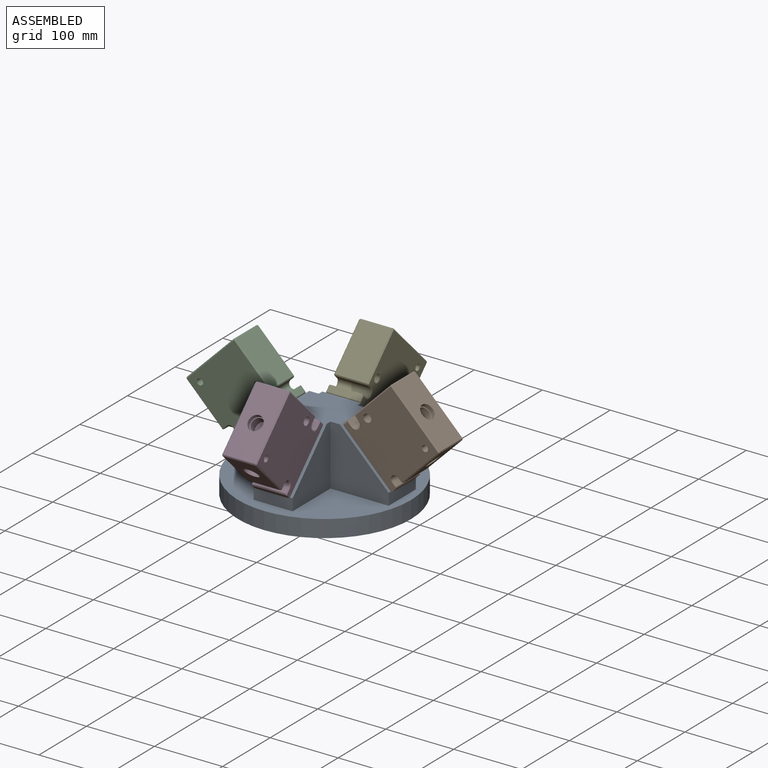
[diagram: assembled view]
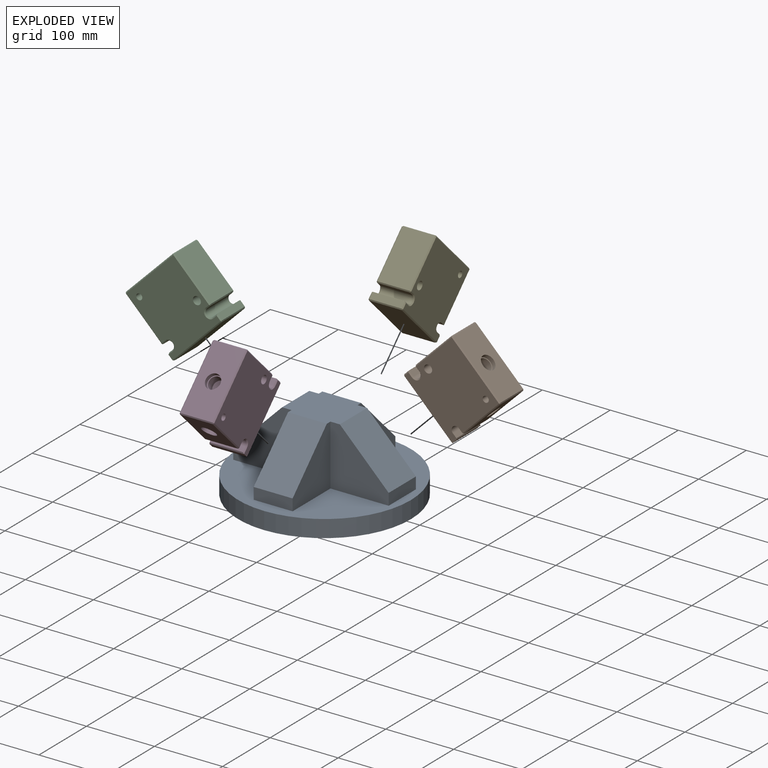
[diagram: exploded view]
GUIDED TOUR — MATED ASSEMBLY (Onshape document 776c51f406f03fa91e3d3eb6, AutoMate assembly 776c51f406f03fa91e3d3eb6_76f6691580d70d45bb50dfe1_dc037e8c6d7397916c1f4bed_default)

This assembly has 5 components, labeled P0..P4 below (a component is one placed occurrence of a part; the same part can appear more than once), held together by 4 mates. A mate is a constraint between two components; its type names the relative motion it leaves free:
  FASTENED — locks the two components together rigidly (no relative motion).
Axis/direction vectors are unit vectors and 'through' points are millimeter coordinates, both in the assembly's world frame.

MATES
  1. FASTENED "Fastened 3": P1 <-> P0, direction (-0.707, 0.000, -0.707) through (114.30, -23.88, -71.84) mm
  2. FASTENED "Fastened 5": P2 <-> P0, direction (0.707, 0.000, -0.707) through (-114.30, 23.88, -71.84) mm
  3. FASTENED "Fastened 4": P4 <-> P0, direction (0.000, -0.707, -0.707) through (23.88, 107.95, -71.84) mm
  4. FASTENED "Fastened 2": P3 <-> P0, direction (0.000, 0.707, -0.707) through (-23.88, -107.95, -71.84) mm

ASSEMBLY ORDER
  1. P4 — the base component [order verified]
  2. P0 [order verified]
  3. P3 [order verified]
  4. P2 [order verified]
  5. P1 [order verified]
Order-tag legend:
  [order verified] — this step's position reverses a verified removal order: the component was checked to insert without passing through the ones already placed.

Of the 5 components, 1 carries the full construction recipe — the FeatureScript program that regenerates the part's solid from scratch; the rest are supplied as boundary geometry only.
Each toured component is shown spotlighted twice — in the assembled view, then in the exploded view, where a leader line traces a displaced component back to its assembled socket (saturated green if recipe-attached, orange if geometry-only; every other component desaturated gray) — followed by its recipe or geometry summary and the mates that hold it.
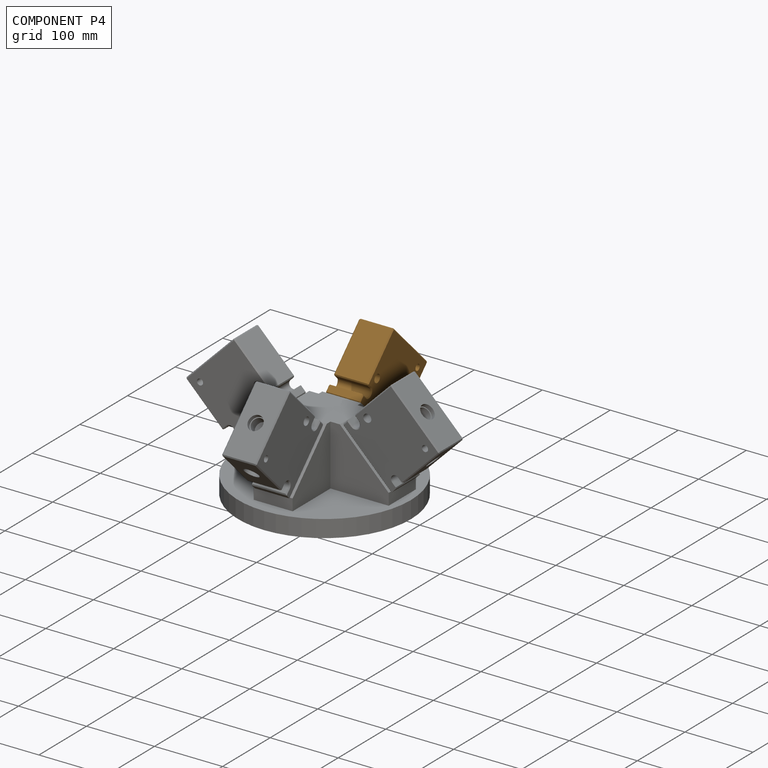
[diagram: component P4 — assembled]
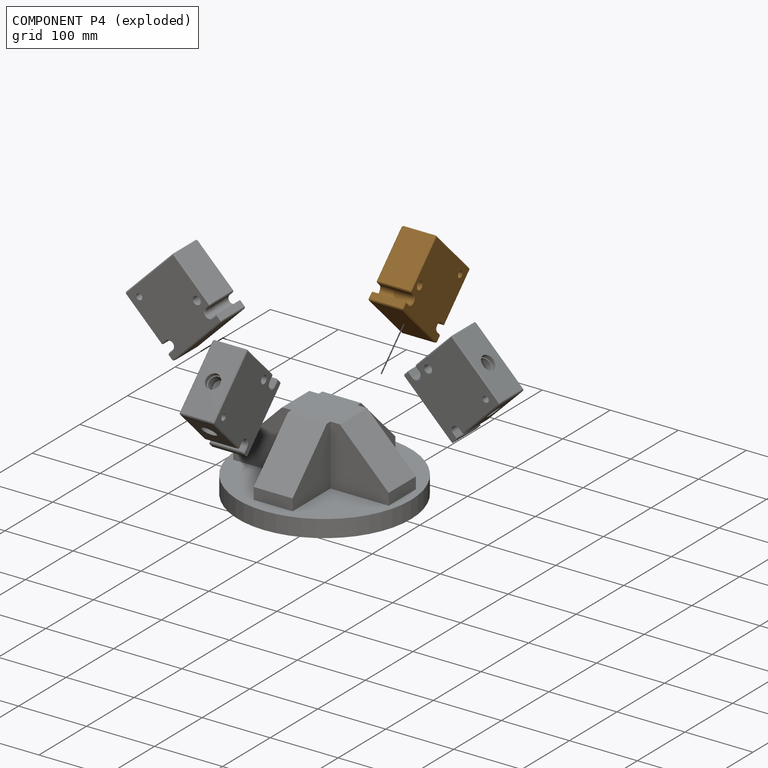
[diagram: component P4 — exploded]
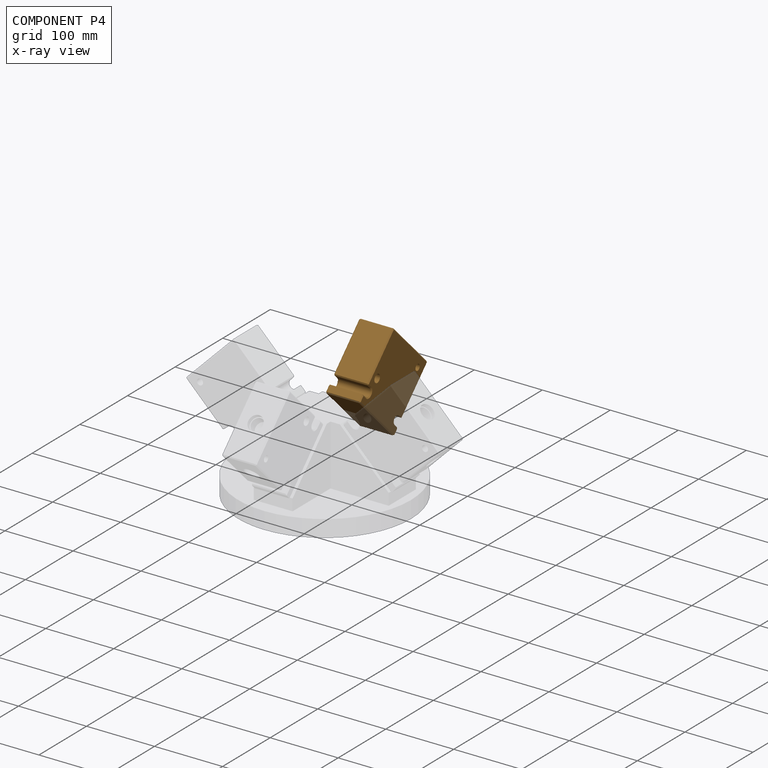
[diagram: component P4 — x-ray view]
COMPONENT P4 — geometry summary (no construction recipe available for this part):
  bounding box: 101.6 x 101.6 x 50.8 mm
  B-rep topology: 1 solid, 58 faces, 250 edges
  volume: 483238 mm^3 (92% of its bounding box)
  symmetry: mirror-symmetric across its x mid-plane
Held by: FASTENED mate "Fastened 4" to P0.
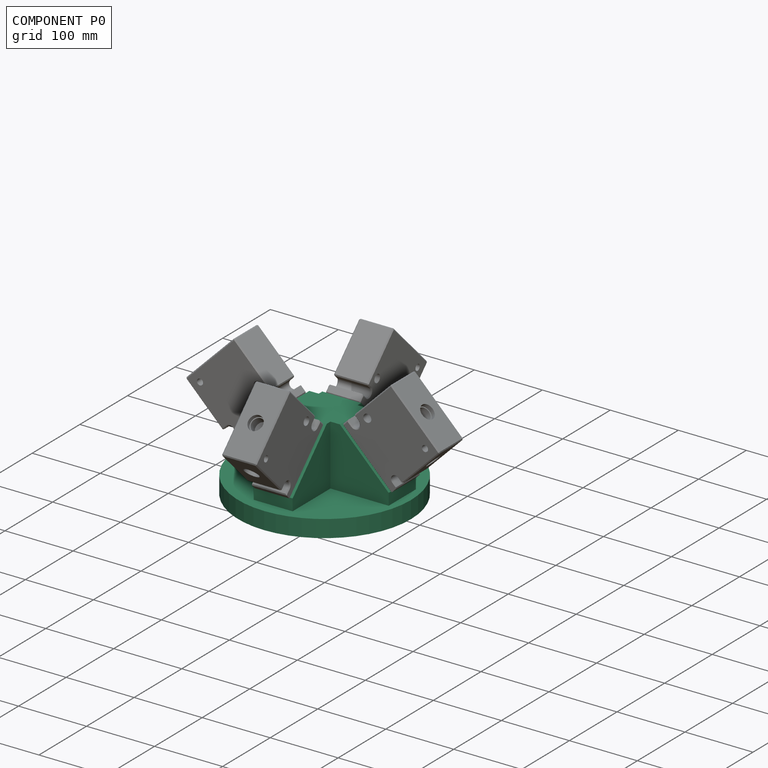
[diagram: component P0 — assembled]
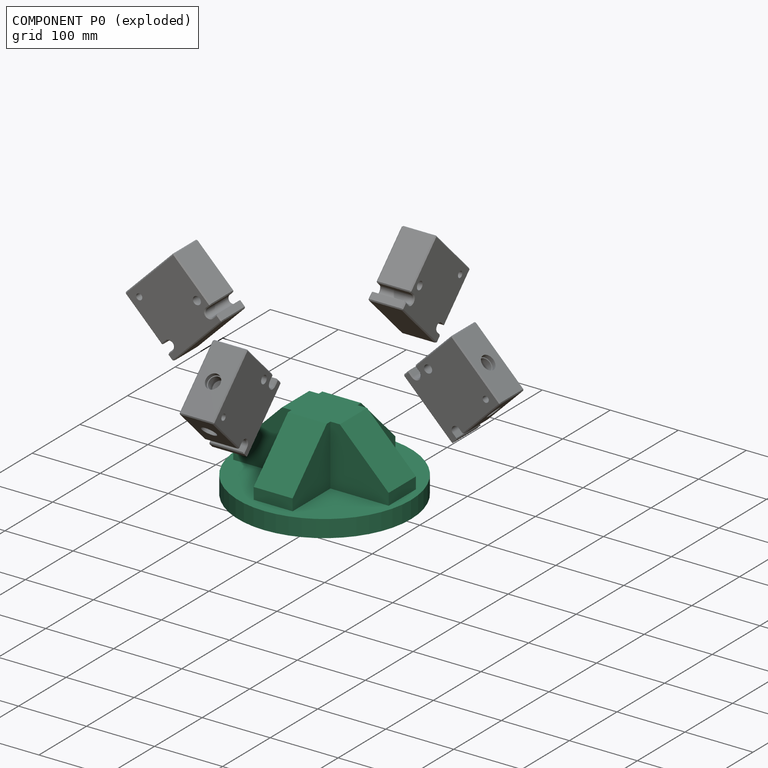
[diagram: component P0 — exploded]
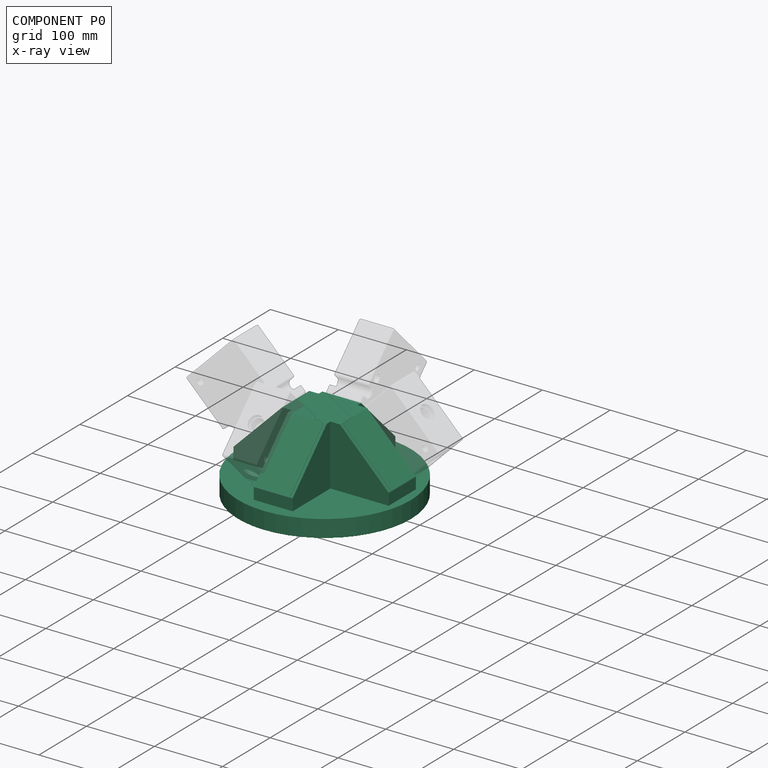
[diagram: component P0 — x-ray view]
COMPONENT P0 — recipe-attached (CADFS 00814078, mesh-verified: the recipe's output STEP matches this component's geometry to below the mesh-comparison resolution (tessellation chordal tolerance ~0.565 mm)).
Held by: FASTENED mate "Fastened 3" to P1; FASTENED mate "Fastened 5" to P2; FASTENED mate "Fastened 4" to P4; FASTENED mate "Fastened 2" to P3.
Construction recipe (FeatureScript — the CAD program that rebuilds this solid; sketch coordinates are in the units given by the * unit suffixes, e.g. mm):

FeatureScript 1511;
import(path : "onshape/std/geometry.fs", version : "1511.0");
import(path : "onshape/std/common.fs", version : "1511.0");
const mm = millimeter;
const VERTEX = EntityType.VERTEX;
const EDGE = EntityType.EDGE;
const FACE = EntityType.FACE;
const BODY = EntityType.BODY;
function v(x, y){return vector(x, y);}
function OD(order){return orderDisambiguation(order);}
function OSD(set){return originalSetDisambiguation(set);}
function TD(topology){return topologyDisambiguation(topology);}
function TDD(query){return trueDependencyDisambiguation(query);}
function sQuery(a, b, c) {return sketchEntityQuery(a, b, c);}

annotation { "Feature Type Name" : "Feature", "Feature Type Description" : "" }
export const myFeature = defineFeature(function(context is Context, id is Id, definition is map)
    precondition{}
    {
        {
            var Q0;
            Q0=qCreatedBy(makeId("Top.planeOp"),FACE);
            var sketch = newSketch(context, id + "F0", { "sketchPlane" : qUnion([Q0])});
            skCircle(sketch, "E0", {"center": v(0, 0) * mm, "radius": 127 * mm});
            skSolve(sketch);
        }
        {
            var Q0;
            Q0=makeQuery(id+"F0.imprint","IMPRINT",FACE,{"disambiguationData":[TD([[makeQuery(id+"F0.imprint","IMPRINT",EDGE,{"derivedFrom":sQuery(id+"F0.wireOp",EDGE,"E0")}),1.0]])]});
            extrude(context, id + "F1", {"entities" : qUnion([Q0]), "depth" : 25.4 * mm, "offsetDistance" : 25.4 * mm});
        }
        {
            var Q0;
            Q0=qCreatedBy(makeId("Right.planeOp"),FACE);
            var sketch = newSketch(context, id + "F2", { "sketchPlane" : qUnion([Q0])});
            skLineSegment(sketch, "E1", {"start": v(-107.95, 25.4) * mm, "end": v(-107.95, 42.46) * mm});
            skLineSegment(sketch, "E2", {"start": v(-107.95, 42.46) * mm, "end": v(-36.1, 114.3) * mm});
            skLineSegment(sketch, "E3", {"start": v(-36.1, 114.3) * mm, "end": v(0, 114.3) * mm});
            skLineSegment(sketch, "E4", {"start": v(0, 114.3) * mm, "end": v(0, 25.4) * mm});
            skLineSegment(sketch, "E5", {"start": v(0, 25.4) * mm, "end": v(-107.95, 25.4) * mm});
            skLineSegment(sketch, "E6", {"start": v(0, 0) * mm, "end": v(0, 105.86) * mm, "construction": true});
            skPoint(sketch, "E6.endSnap0", {"position": v(0, 69.85) * mm});
            skLineSegment(sketch, "E7.MirrorCS", {"start": v(107.95, 25.4) * mm, "end": v(107.95, 42.46) * mm});
            skLineSegment(sketch, "E8.MirrorCS", {"start": v(36.1, 114.3) * mm, "end": v(0, 114.3) * mm});
            skLineSegment(sketch, "E9.MirrorCS", {"start": v(0, 25.4) * mm, "end": v(107.95, 25.4) * mm});
            skLineSegment(sketch, "E10.MirrorCS", {"start": v(107.95, 42.46) * mm, "end": v(36.1, 114.3) * mm});
            skSolve(sketch);
        }
        {
            var Q0;
            Q0 = qSketchRegion(id + "F2", true);
            extrude(context, id + "F3", {"entities" : qUnion([Q0]), "operationType" : NewBodyOperationType.ADD, "endBound" : BoundingType.SYMMETRIC, "depth" : 57.15 * mm, "offsetDistance" : 25.4 * mm});
        }
        {
            var Q0;
            Q0=qCreatedBy(makeId("Front.planeOp"),FACE);
            var sketch = newSketch(context, id + "F4", { "sketchPlane" : qUnion([Q0])});
            skLineSegment(sketch, "E11", {"start": v(-114.3, 25.4) * mm, "end": v(-114.3, 42.46) * mm});
            skLineSegment(sketch, "E12", {"start": v(-114.3, 42.46) * mm, "end": v(-42.46, 114.3) * mm});
            skLineSegment(sketch, "E13", {"start": v(-42.46, 114.3) * mm, "end": v(0, 114.3) * mm});
            skLineSegment(sketch, "E14", {"start": v(0, 114.3) * mm, "end": v(0, 25.4) * mm});
            skLineSegment(sketch, "E15", {"start": v(0, 25.4) * mm, "end": v(-114.3, 25.4) * mm});
            skLineSegment(sketch, "E16", {"start": v(0, 0) * mm, "end": v(0, 124.28) * mm, "construction": true});
            skLineSegment(sketch, "E17.MirrorCS", {"start": v(114.3, 25.4) * mm, "end": v(114.3, 42.46) * mm});
            skLineSegment(sketch, "E18.MirrorCS", {"start": v(114.3, 42.46) * mm, "end": v(42.46, 114.3) * mm});
            skLineSegment(sketch, "E19.MirrorCS", {"start": v(0, 25.4) * mm, "end": v(114.3, 25.4) * mm});
            skLineSegment(sketch, "E20.MirrorCS", {"start": v(42.46, 114.3) * mm, "end": v(0, 114.3) * mm});
            skSolve(sketch);
        }
        {
            var Q0;
            Q0 = qSketchRegion(id + "F4", true);
            extrude(context, id + "F5", {"entities" : qUnion([Q0]), "operationType" : NewBodyOperationType.ADD, "endBound" : BoundingType.SYMMETRIC, "oppositeDirection" : true, "depth" : 57.15 * mm, "offsetDistance" : 25.4 * mm});
        }
    });
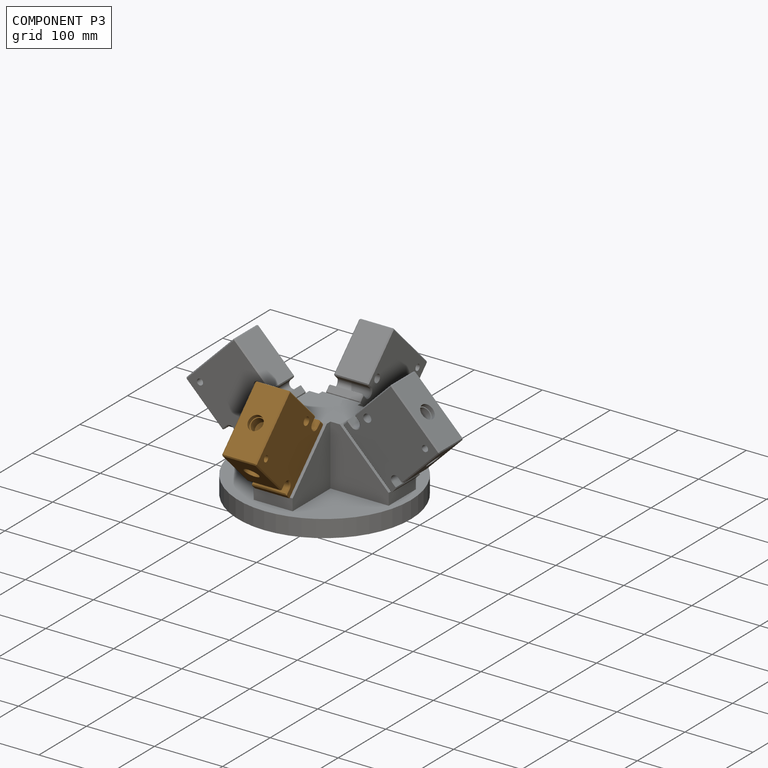
[diagram: component P3 — assembled]
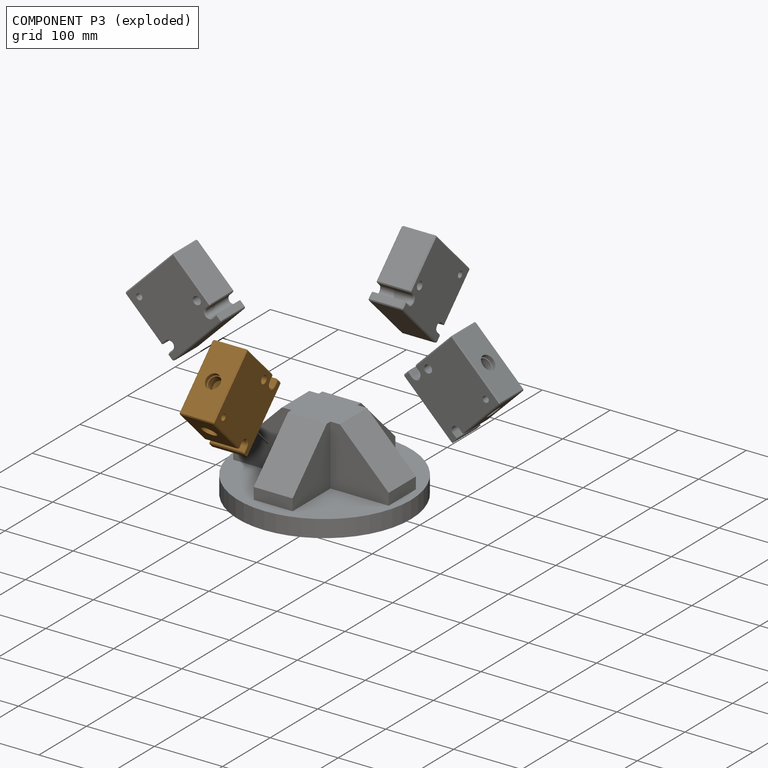
[diagram: component P3 — exploded]
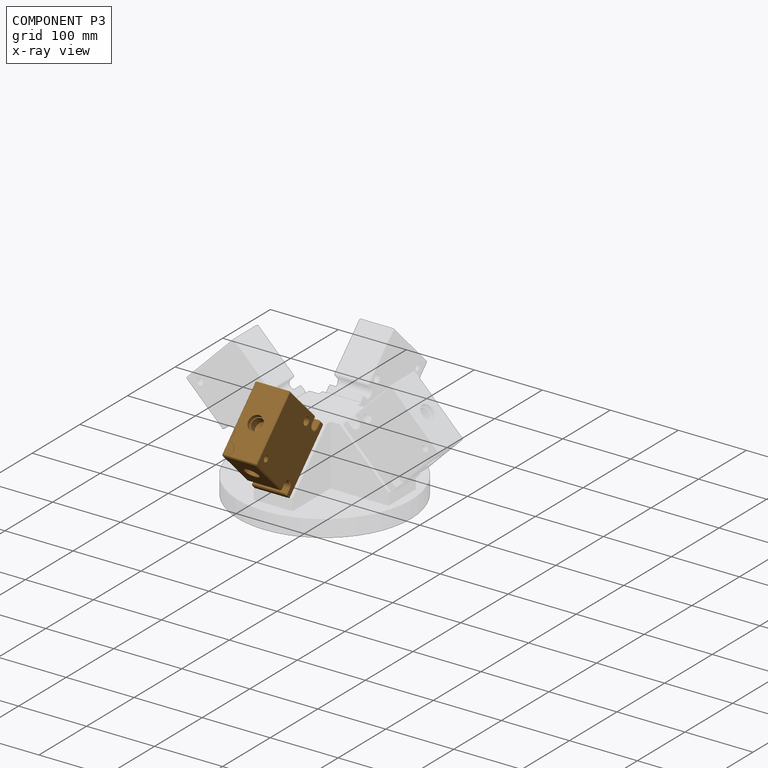
[diagram: component P3 — x-ray view]
COMPONENT P3 — geometry summary (no construction recipe available for this part):
  bounding box: 101.6 x 101.6 x 50.8 mm
  B-rep topology: 1 solid, 58 faces, 250 edges
  volume: 483238 mm^3 (92% of its bounding box)
  symmetry: mirror-symmetric across its x mid-plane
Held by: FASTENED mate "Fastened 2" to P0.
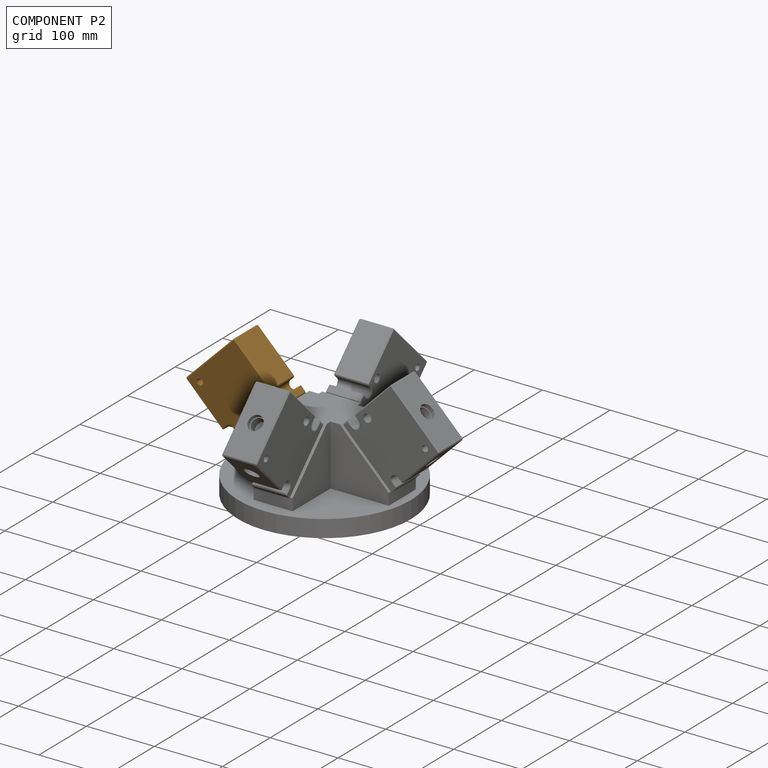
[diagram: component P2 — assembled]
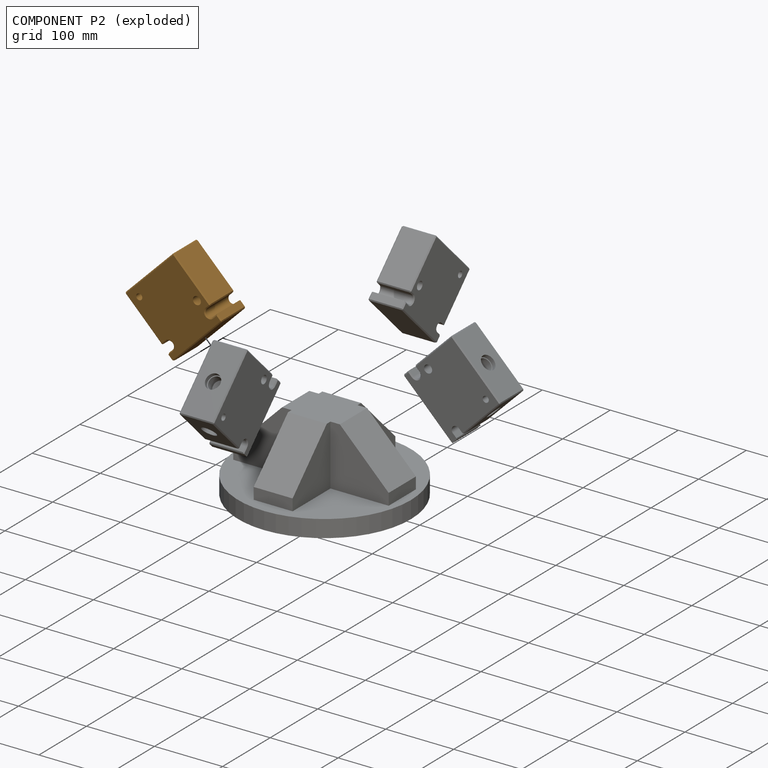
[diagram: component P2 — exploded]
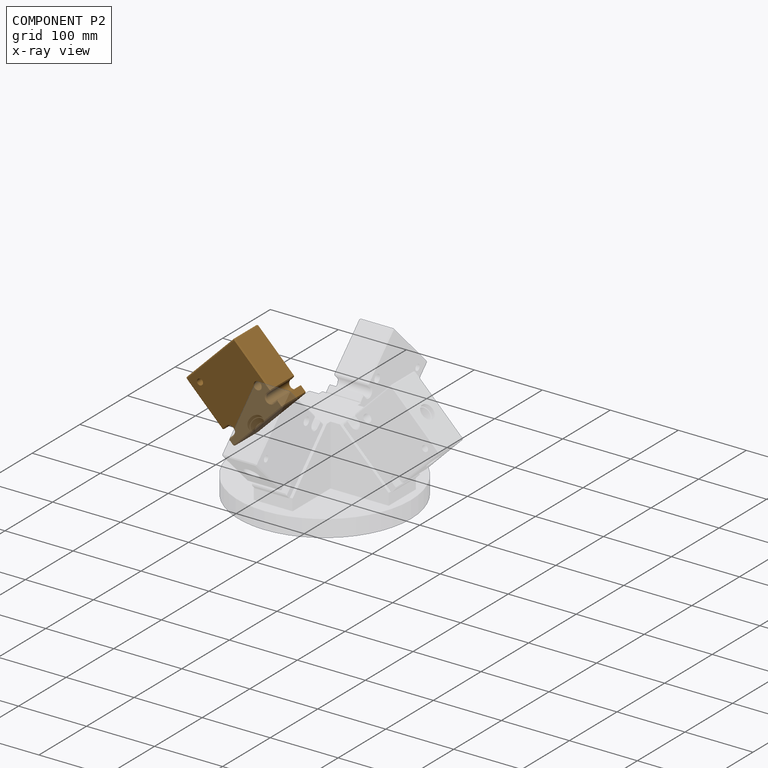
[diagram: component P2 — x-ray view]
COMPONENT P2 — geometry summary (no construction recipe available for this part):
  bounding box: 101.6 x 101.6 x 50.8 mm
  B-rep topology: 1 solid, 58 faces, 250 edges
  volume: 483238 mm^3 (92% of its bounding box)
  symmetry: mirror-symmetric across its x mid-plane
Held by: FASTENED mate "Fastened 5" to P0.
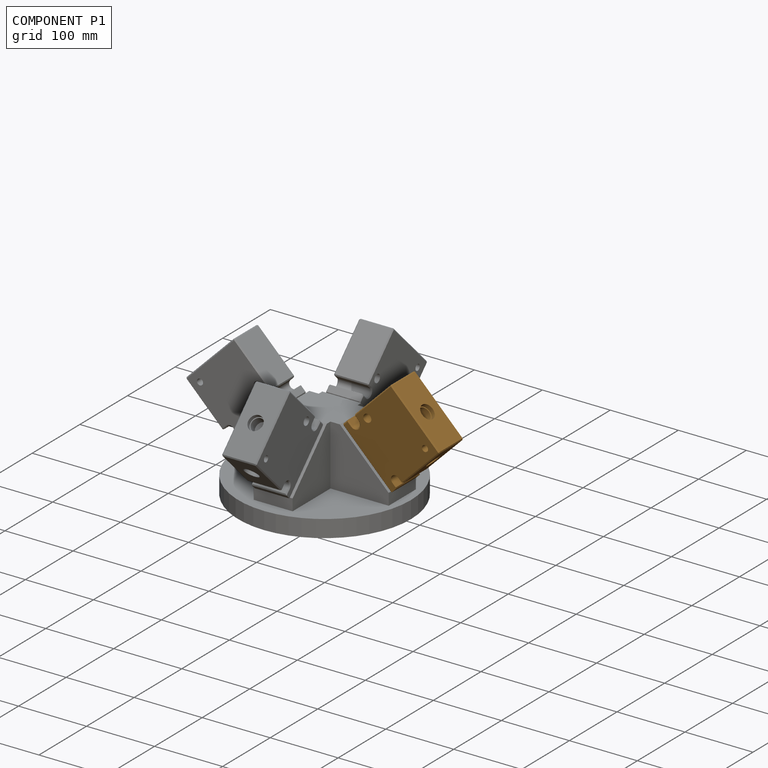
[diagram: component P1 — assembled]
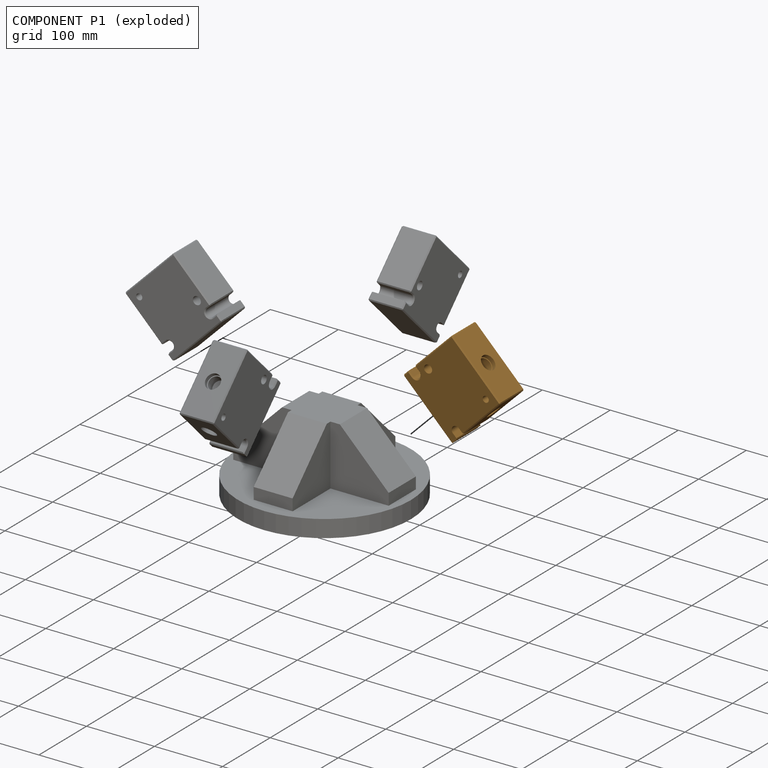
[diagram: component P1 — exploded]
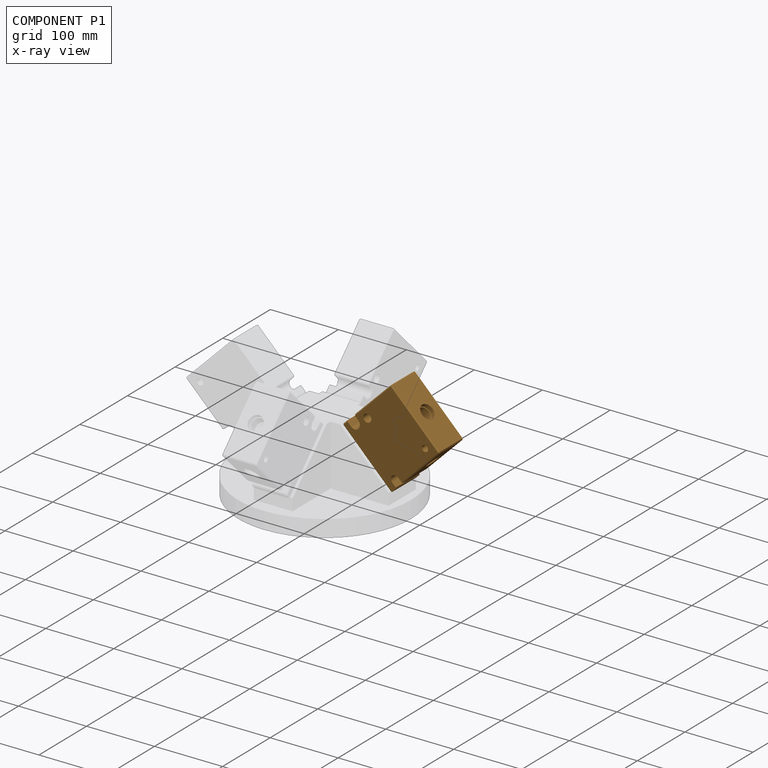
[diagram: component P1 — x-ray view]
COMPONENT P1 — geometry summary (no construction recipe available for this part):
  bounding box: 101.6 x 101.6 x 50.8 mm
  B-rep topology: 1 solid, 58 faces, 250 edges
  volume: 483238 mm^3 (92% of its bounding box)
  symmetry: mirror-symmetric across its x mid-plane
Held by: FASTENED mate "Fastened 3" to P0.
PROVENANCE & LICENSES
Assembly (occurrences, transforms, mates, per-part STEP geometry): AutoMate dataset, Zenodo record 7776208, CC0.
Construction recipes: CADFS (HuggingFace VladPyatov/CADFS, CC-BY-4.0, layered over the ABC dataset), FeatureScript reconstruction programs keyed by ABC model id.
Join: ABC meta listings map ABC model id -> Onshape documentId; within a shared document, parts are matched by geometric signature (bounding-box dims + volume at 0.1% relative tolerance, exact B-rep face/solid counts).
Verification: 1 of this assembly's 5 components carries a recipe attachment, and every attachment is mesh-verified: the CADFS STEP and the AutoMate member STEP were compared as meshes in their shared local frame (symmetric sampled-point-to-mesh distance); worst across the 1 attachment: below the mesh-comparison resolution (tessellation chordal tolerance ~0.565 mm) on a 377 mm part.
Renders: orthographic iso camera (az 35 / el 25); the floor grid conveys scale (grid pitch printed in each image; no ruler). In the exploded view each component is displaced by its stored offset vector: the offsets alone carry the explosion direction (mate normal/axis signs are not orientation cues and do not encode it), and separation distances are assigned per mate-chain, not proportionally to assembly-order depth.
